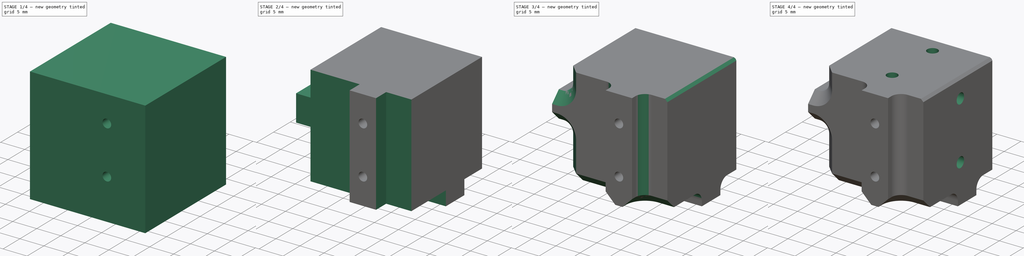
[diagram: build sequence overview — one tinted view per stage of 4, left to right]
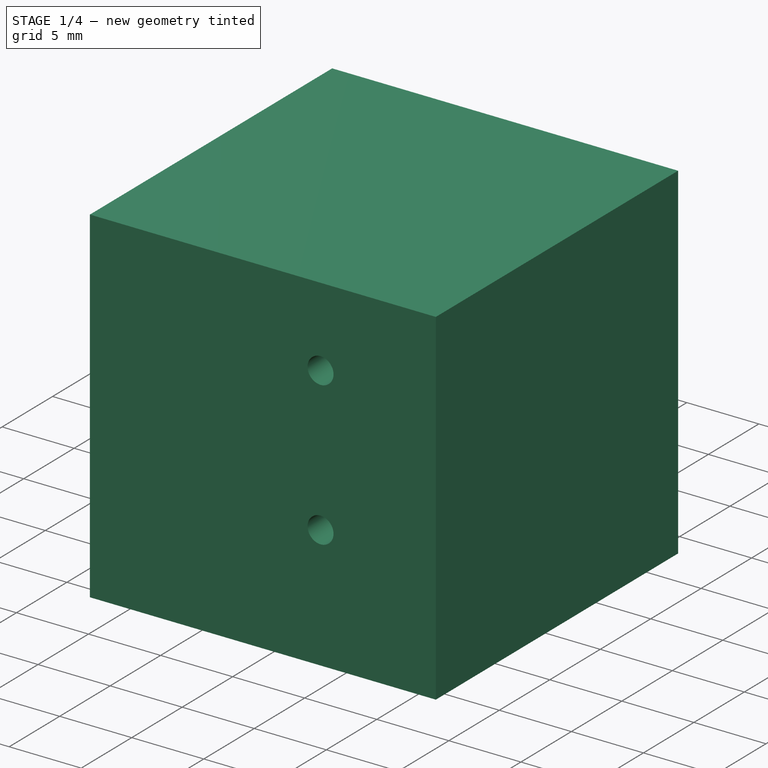
[diagram: stage 1 of 4 — iso view after this stage's code; geometry added in this stage tinted green]
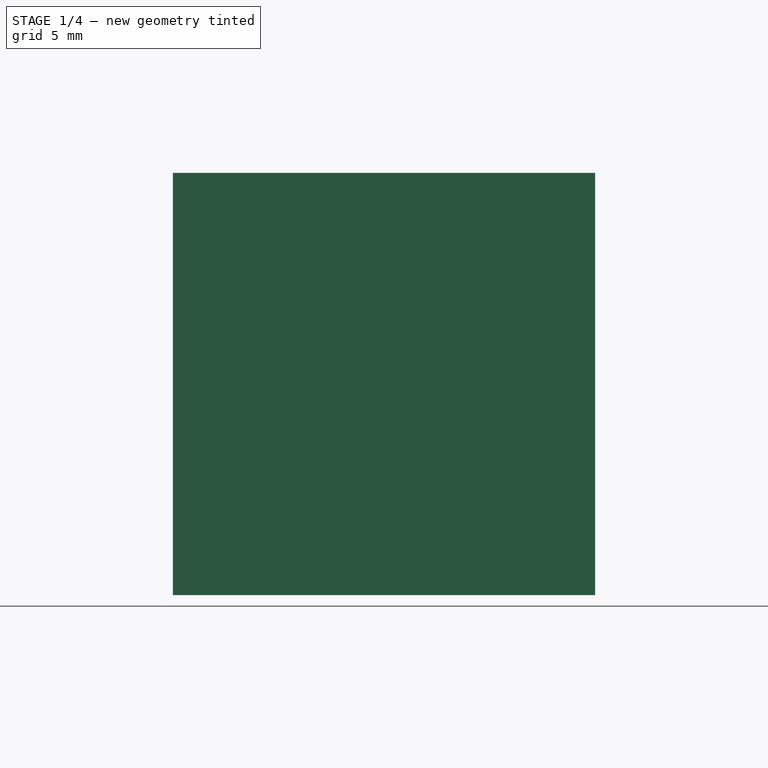
[diagram: stage 1 of 4 — front view after this stage's code; geometry added in this stage tinted green]
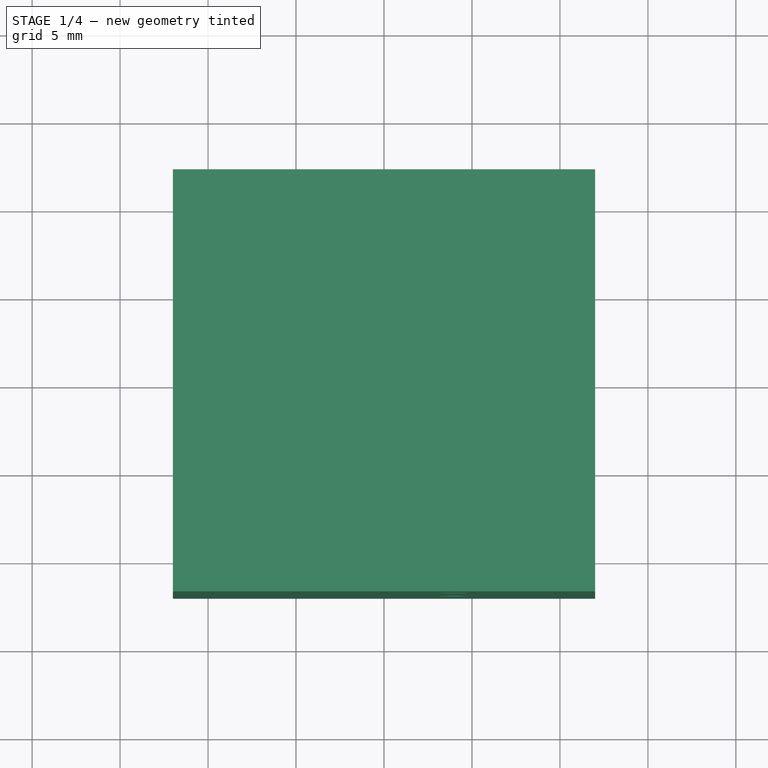
[diagram: stage 1 of 4 — top view after this stage's code; geometry added in this stage tinted green]
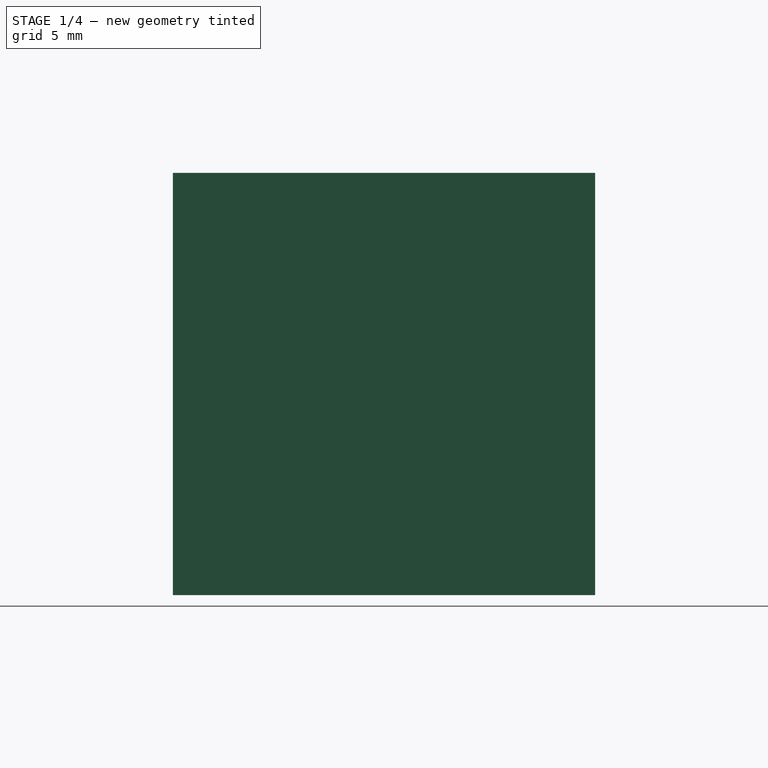
[diagram: stage 1 of 4 — right view after this stage's code; geometry added in this stage tinted green]
FCSTD DOCUMENT  (FreeCAD 1.1R41365 (Git))
Label: EndEffector
License: All rights reserved
LicenseURL: https://en.wikipedia.org/wiki/All_rights_reserved
objects: Sketcher::SketchObject×4, PartDesign::Pocket×3, PartDesign::PolarPattern×2, PartDesign::Chamfer×2, App::Point×1, PartDesign::Pad×1, Part::DatumLine×1, PartDesign::Fillet×1, PartDesign::Body×1
note: 34 computed .brp shape members not serialized (recipe doc carries the construction recipe); baked Part::Feature solids carry a one-line shape summary decoded from their .brp

FEATURE [App::Point] Origin001
  Role = Origin
FEATURE [Sketcher::SketchObject] Sketch
  ArcFitTolerance = 1e-06
  AttachmentSupport = -> [XY_Plane]
  ExternalTypes = [0]
  FullyConstrained = true
  MakeInternals = false
  MapMode = 5
  sketch-geometry (5):
    g0: LineSegment StartX=-12 StartY=12 StartZ=0 EndX=-12 EndY=-12 EndZ=0
    g1: LineSegment StartX=-12 StartY=-12 StartZ=0 EndX=12 EndY=-12 EndZ=0
    g2: LineSegment StartX=12 StartY=-12 StartZ=0 EndX=12 EndY=12 EndZ=0
    g3: LineSegment StartX=12 StartY=12 StartZ=0 EndX=-12 EndY=12 EndZ=0
    g4: GeomPoint [constr] X=0 Y=0 Z=0
  constraints (12):
    c: Coincident(g0,g1)
    c: Coincident(g1,g2)
    c: Coincident(g2,g3)
    c: Coincident(g3,g0)
    c: Vertical(g0)
    c: Vertical(g2)
    c: Horizontal(g1)
    c: Horizontal(g3)
    c: Symmetric(g2,g0,g4)
    c: Coincident(g4,g-1)
    c: DistanceY(g2,g2) = 24
    c: DistanceX(g1,g1) = 24
FEATURE [PartDesign::Pad] Pad
  Direction = (0,0,1)
  Length = 24
  Length2 = 10
  Midplane = true
  Profile = -> Sketch
  ReferenceAxis = -> Sketch [N_Axis]
  Refine = true
  Suppressed = false
  Type = 0
FEATURE [Sketcher::SketchObject] Sketch001
  ArcFitTolerance = 1e-06
  AttachmentSupport = -> [Pad]
  ExternalGeometry = -> [Pad]
  ExternalTypes = [0]
  FullyConstrained = true
  MakeInternals = false
  MapMode = 5
  Placement = pos=(0,-12,0) rot=(1,0,0;1.5708rad)
  sketch-geometry (4):
    g0: Circle CenterX=4 CenterY=6.5 CenterZ=0 NormalX=0 NormalY=0 NormalZ=1 AngleXU=0 Radius=0.9
    g1: Circle CenterX=4 CenterY=-3.5 CenterZ=0 NormalX=0 NormalY=0 NormalZ=1 AngleXU=0 Radius=0.9
    g2: LineSegment [constr] StartX=4 StartY=6.5 StartZ=0 EndX=4 EndY=-3.5 EndZ=0
    g3: GeomPoint X=4 Y=1.5 Z=0
  constraints (9):
    c: Equal(g0,g1)
    c: Vertical(g1,g0)
    c: DistanceY(g1,g0) = 10
    c: Coincident(g2,g0)
    c: Coincident(g2,g1)
    c: Diameter(g0) = 1.8
    c: Symmetric(g2,g2,g3)
    c: DistanceY(g-1,g3) = 1.5
    c: Distance(g-2,g2) = 4
FEATURE [PartDesign::Pocket] Pocket
  BaseFeature = -> Pad
  Direction = (0,1,-2e-16)
  Length = 10
  Length2 = 5
  Midplane = true
  Profile = -> Sketch001
  ReferenceAxis = -> Sketch001 [N_Axis]
  Refine = true
  Suppressed = false
  Type = 0
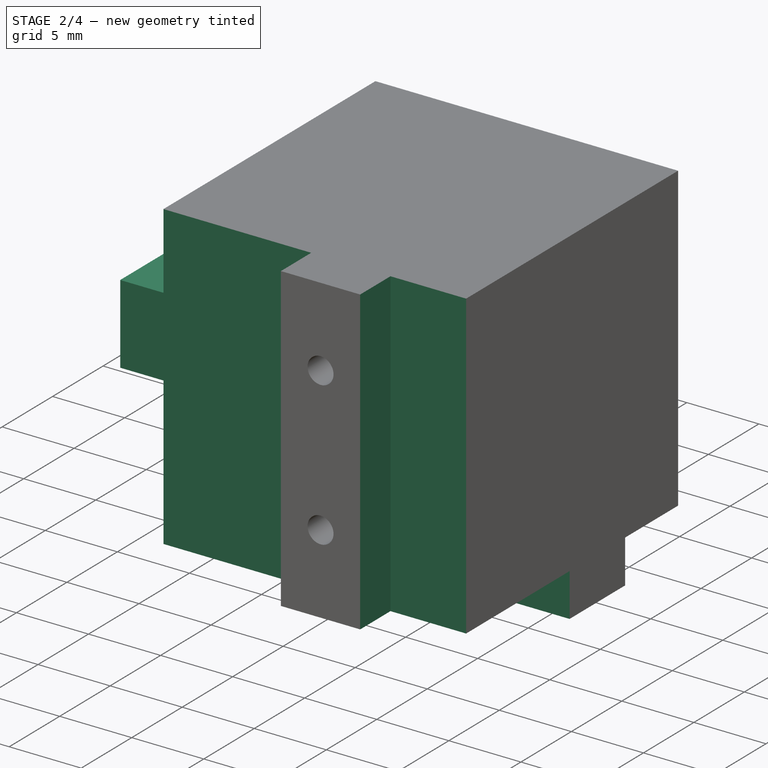
[diagram: stage 2 of 4 — iso view after this stage's code; geometry added in this stage tinted green]
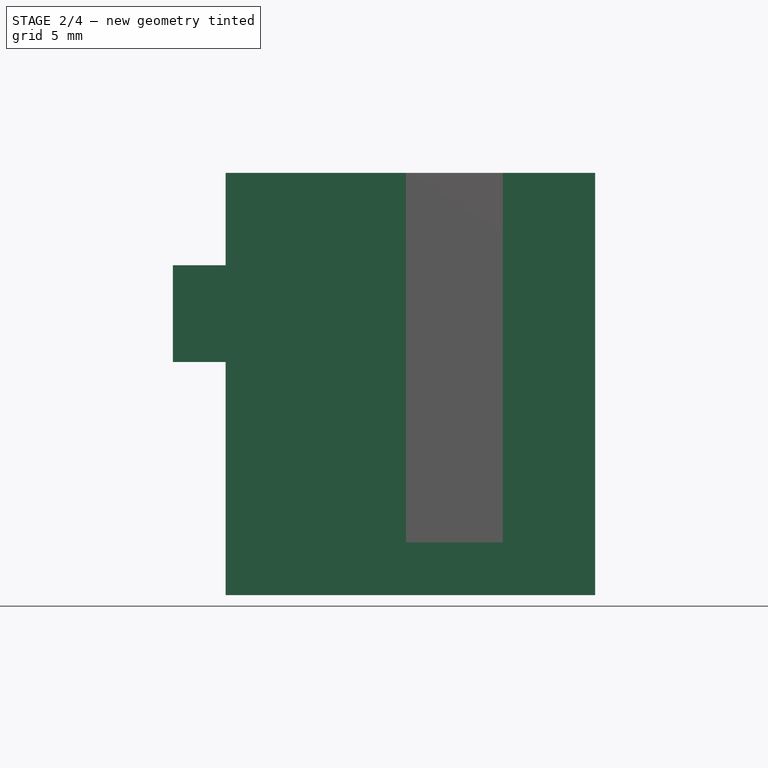
[diagram: stage 2 of 4 — front view after this stage's code; geometry added in this stage tinted green]
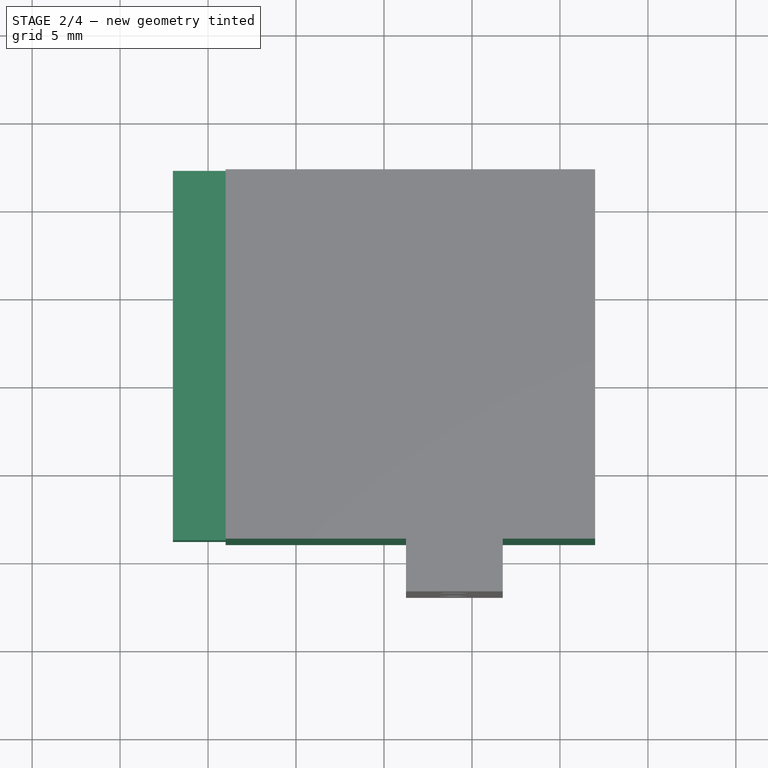
[diagram: stage 2 of 4 — top view after this stage's code; geometry added in this stage tinted green]
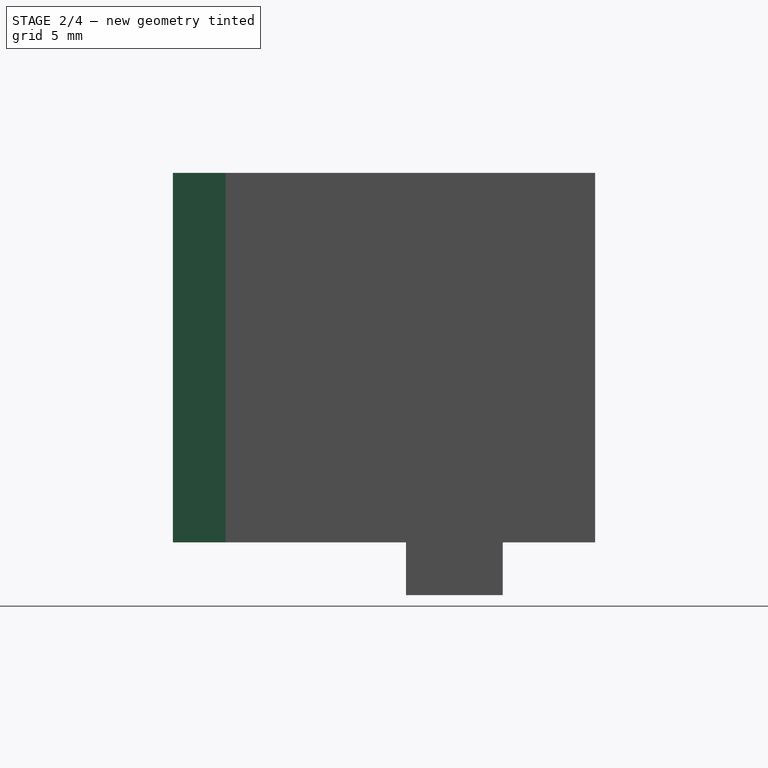
[diagram: stage 2 of 4 — right view after this stage's code; geometry added in this stage tinted green]
FEATURE [Part::DatumLine] DatumLine
  AttacherType = Attacher::AttachEngineLine
  AttachmentSupport = -> [Pocket]
  MapMode = 29
  Placement = pos=(0,0,0) rot=(0.187053,0.451587,0.872399;2.44807rad)
FEATURE [Sketcher::SketchObject] Sketch002
  ArcFitTolerance = 1e-06
  AttachmentSupport = -> [Pocket]
  ExternalGeometry = -> [Pocket]
  ExternalTypes = [0,0]
  FullyConstrained = true
  MakeInternals = false
  MapMode = 5
  Placement = pos=(0,-12,0) rot=(1,0,0;1.5708rad)
  sketch-geometry (11):
    g0: LineSegment StartX=-18.75 StartY=12.5 StartZ=0 EndX=-18.75 EndY=-12.5 EndZ=0
    g1: LineSegment StartX=-18.75 StartY=-12.5 StartZ=0 EndX=1.25 EndY=-12.5 EndZ=0
    g2: LineSegment StartX=1.25 StartY=-12.5 StartZ=0 EndX=1.25 EndY=12.5 EndZ=0
    g3: LineSegment StartX=1.25 StartY=12.5 StartZ=0 EndX=-18.75 EndY=12.5 EndZ=0
    g4: GeomPoint [constr] X=-8.75 Y=0 Z=0
    g5: LineSegment StartX=6.75 StartY=12.5 StartZ=0 EndX=6.75 EndY=-12.5 EndZ=0
    g6: LineSegment StartX=6.75 StartY=-12.5 StartZ=0 EndX=26.75 EndY=-12.5 EndZ=0
    g7: LineSegment StartX=26.75 StartY=-12.5 StartZ=0 EndX=26.75 EndY=12.5 EndZ=0
    g8: LineSegment StartX=26.75 StartY=12.5 StartZ=0 EndX=6.75 EndY=12.5 EndZ=0
    g9: LineSegment [constr] StartX=1.25 StartY=12.5 StartZ=0 EndX=6.75 EndY=12.5 EndZ=0
    g10: LineSegment [constr] StartX=4 StartY=6.5 StartZ=0 EndX=4 EndY=12.5 EndZ=0
  constraints (27):
    c: Coincident(g0,g1)
    c: Coincident(g1,g2)
    c: Coincident(g2,g3)
    c: Coincident(g3,g0)
    c: Vertical(g0)
    c: Vertical(g2)
    c: Horizontal(g1)
    c: Horizontal(g3)
    c: Symmetric(g2,g0,g4)
    c: PointOnObject(g4,g-1)
    c: DistanceX(g3,g3) = 20
    c: DistanceY(g0,g0) = 25
    c: Coincident(g5,g6)
    c: Coincident(g6,g7)
    c: Coincident(g7,g8)
    c: Coincident(g8,g5)
    c: Vertical(g5)
    c: Vertical(g7)
    c: Tangent(g1,g6)
    c: Tangent(g8,g3)
    c: Distance(g5,g2) = 5.5
    c: Equal(g8,g3)
    c: Coincident(g9,g2)
    c: Coincident(g9,g5)
    c: Symmetric(g9,g9,g10)
    c: Perpendicular(g9,g10)
    c: Coincident(g-3,g10)
FEATURE [PartDesign::Pocket] Pocket001
  BaseFeature = -> Pocket
  Direction = (0,1,-2e-16)
  Length = 3
  Length2 = 5
  Profile = -> Sketch002
  ReferenceAxis = -> Sketch002 [N_Axis]
  Refine = true
  Suppressed = false
  Type = 0
FEATURE [PartDesign::PolarPattern] PolarPattern
  Angle = 360
  Axis = -> DatumLine
  BaseFeature = -> Pocket001
  Mode = 0
  Occurrences = 3
  Offset = 120
  Originals = -> [Pocket,Pocket001]
  Refine = true
  Suppressed = false
  TransformMode = 0
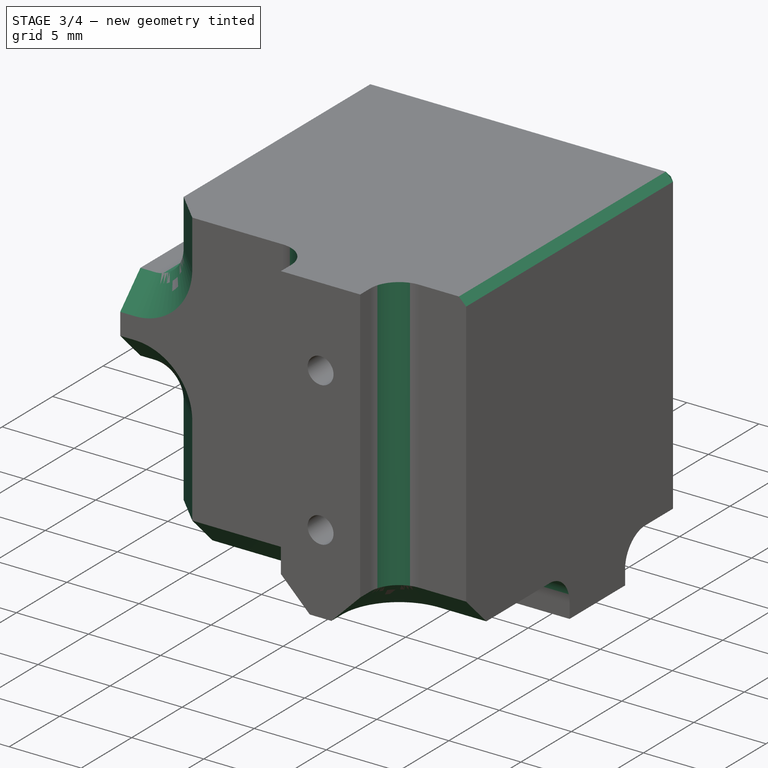
[diagram: stage 3 of 4 — iso view after this stage's code; geometry added in this stage tinted green]
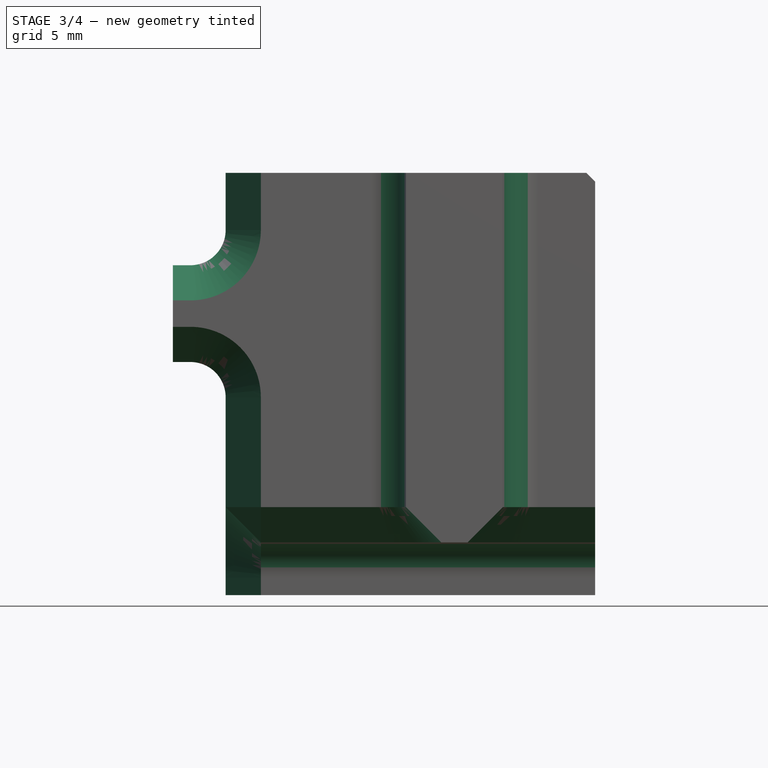
[diagram: stage 3 of 4 — front view after this stage's code; geometry added in this stage tinted green]
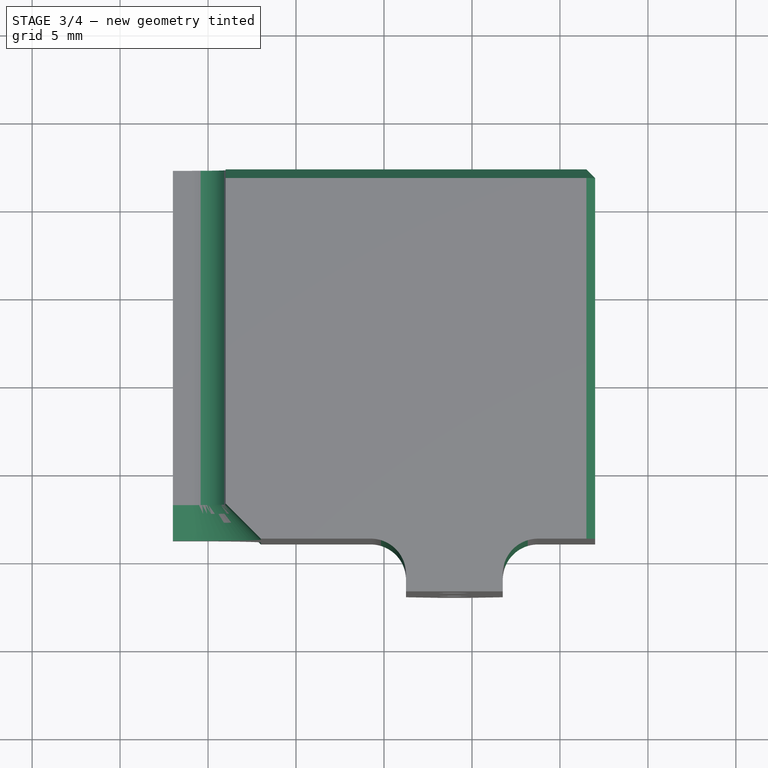
[diagram: stage 3 of 4 — top view after this stage's code; geometry added in this stage tinted green]
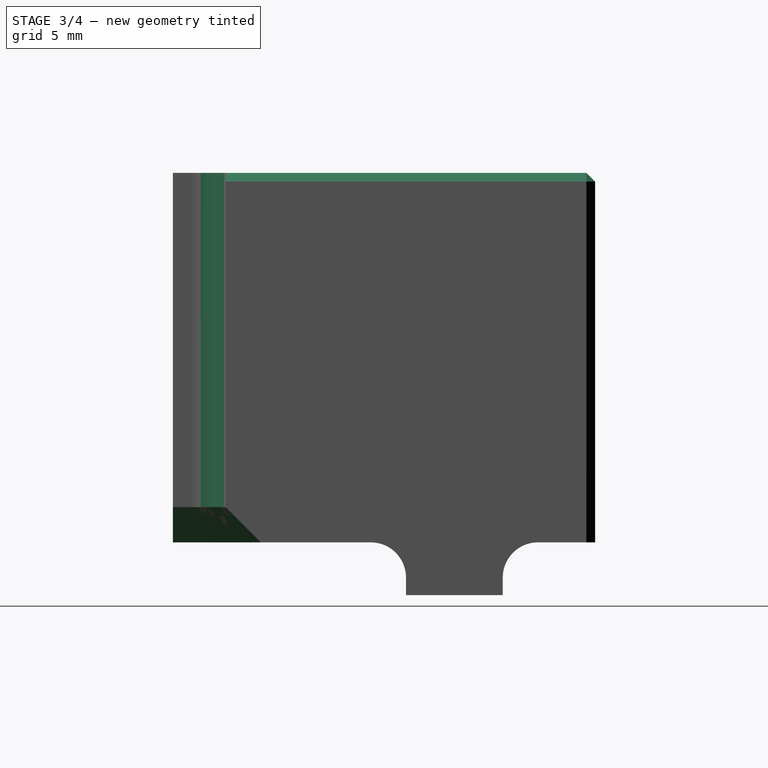
[diagram: stage 3 of 4 — right view after this stage's code; geometry added in this stage tinted green]
FEATURE [PartDesign::Fillet] Fillet
  Base = -> PolarPattern [Edge15,Edge43,Edge8,Edge16,Edge55,Edge45]
  BaseFeature = -> PolarPattern
  Radius = 2
  Refine = true
  SupportTransform = false
  Suppressed = false
  UseAllEdges = false
FEATURE [PartDesign::Chamfer] Chamfer
  Angle = 45
  Base = -> Fillet [Edge25,Edge32,Edge23,Edge27,Edge22,Edge60]
  BaseFeature = -> Fillet
  ChamferType = 0
  FlipDirection = false
  Refine = true
  Size = 2
  Size2 = 1
  SupportTransform = false
  Suppressed = false
  UseAllEdges = false
FEATURE [PartDesign::Chamfer] Chamfer001
  Angle = 45
  Base = -> Chamfer [Edge16,Edge51,Edge14]
  BaseFeature = -> Chamfer
  ChamferType = 0
  FlipDirection = false
  Refine = true
  Size = 0.5
  Size2 = 1
  SupportTransform = false
  Suppressed = false
  UseAllEdges = false
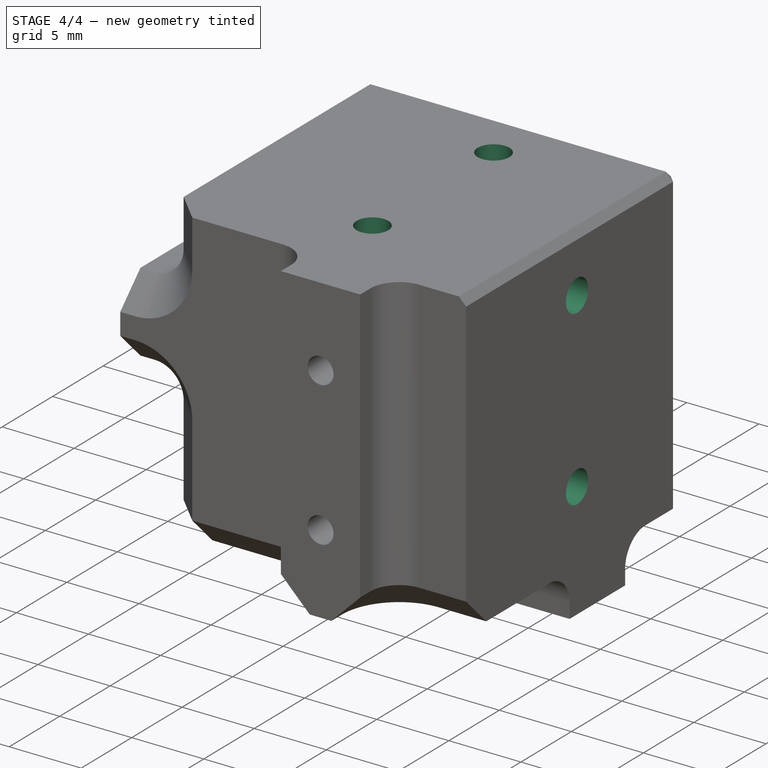
[diagram: stage 4 of 4 — iso view after this stage's code; geometry added in this stage tinted green]
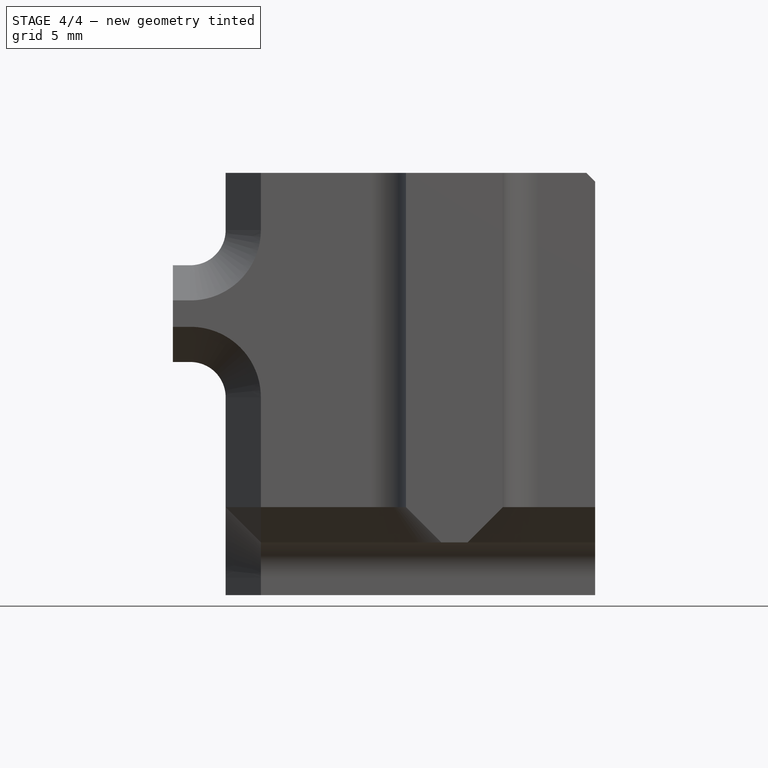
[diagram: stage 4 of 4 — front view after this stage's code; geometry added in this stage tinted green]
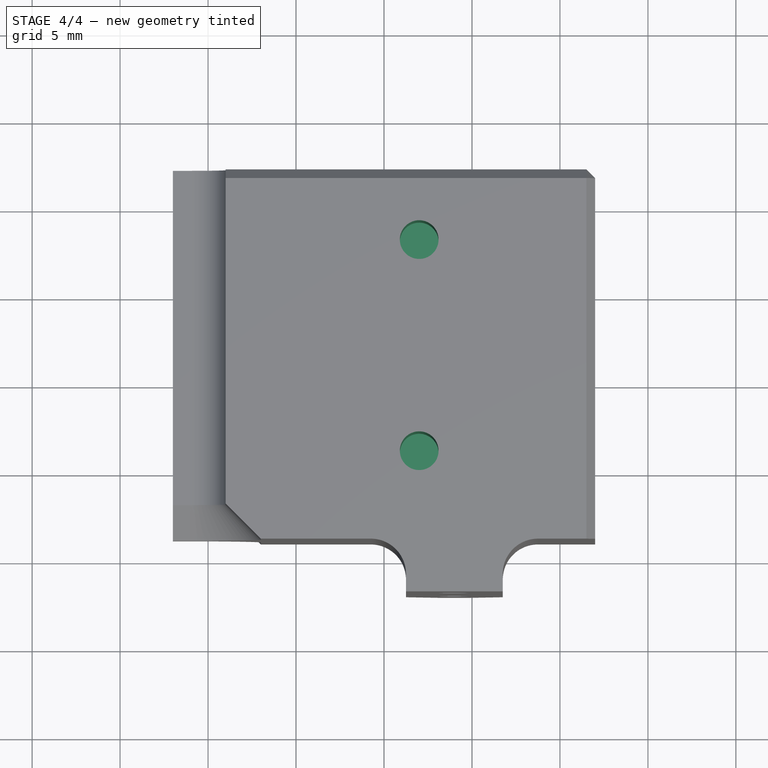
[diagram: stage 4 of 4 — top view after this stage's code; geometry added in this stage tinted green]
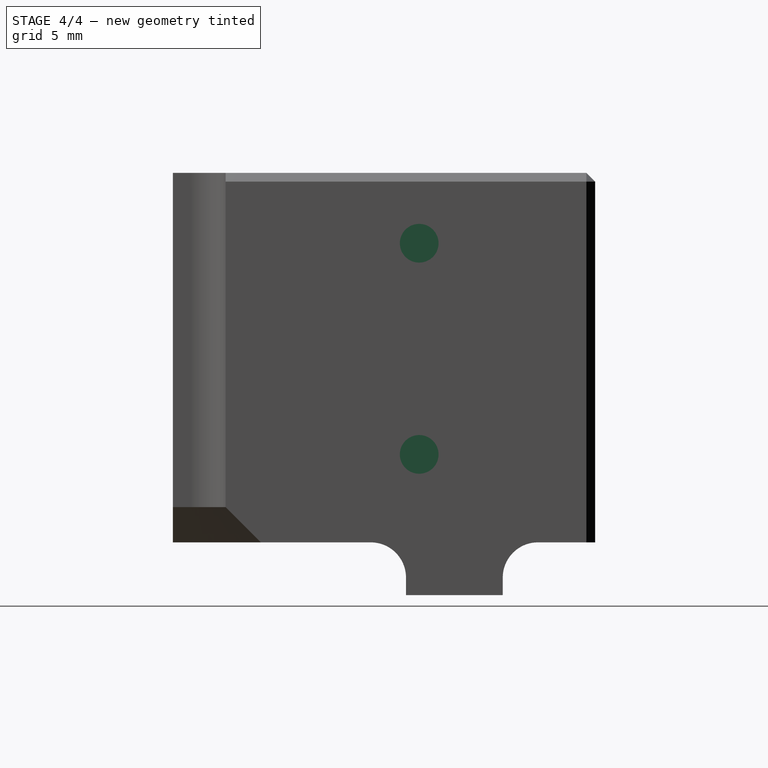
[diagram: stage 4 of 4 — right view after this stage's code; geometry added in this stage tinted green]
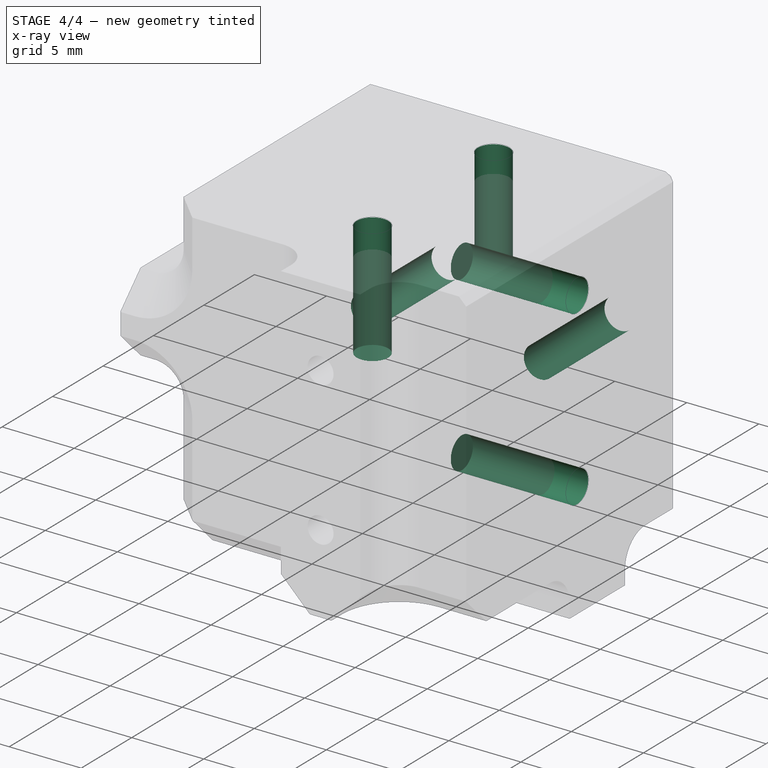
[diagram: stage 4 of 4 — x-ray composite at the iso view; earlier geometry ghosted, this stage's added geometry solid]
FEATURE [Sketcher::SketchObject] Sketch003
  ArcFitTolerance = 1e-06
  AttachmentSupport = -> [Chamfer001]
  ExternalTypes = [0]
  FullyConstrained = false
  MakeInternals = false
  MapMode = 5
  Placement = pos=(0,0,12) rot=(0,0,1;0rad)
  sketch-geometry (3):
    g0: Circle CenterX=2 CenterY=8 CenterZ=0 NormalX=0 NormalY=0 NormalZ=1 AngleXU=0 Radius=1.1
    g1: Circle CenterX=2 CenterY=-4 CenterZ=0 NormalX=0 NormalY=0 NormalZ=1 AngleXU=0 Radius=1.1
    g2: LineSegment [constr] StartX=2 StartY=8 StartZ=0 EndX=2 EndY=-4 EndZ=0
  constraints (7):
    c: Diameter(g0) = 2.2
    c: Vertical(g2)
    c: Coincident(g2,g0)
    c: Coincident(g1,g2)
    c: DistanceY(g-1,g0) = 8
    c: DistanceY(g2,g2) = 12
    c: Distance(g-2,g2) = 2
FEATURE [PartDesign::Pocket] Pocket002
  BaseFeature = -> Chamfer001
  Direction = (0,0,-1)
  Length = 8
  Length2 = 5
  Profile = -> Sketch003
  ReferenceAxis = -> Sketch003 [N_Axis]
  Refine = true
  Suppressed = false
  Type = 0
FEATURE [PartDesign::PolarPattern] PolarPattern001
  Angle = 360
  Axis = -> DatumLine
  BaseFeature = -> Pocket002
  Mode = 0
  Occurrences = 3
  Offset = 120
  Originals = -> [Pocket002]
  Refine = true
  Suppressed = false
  TransformMode = 0
FEATURE [PartDesign::Body] Body  label="Endeffector"
  AllowCompound = false
  Group = -> [Sketch,Pad,Sketch001,Pocket,DatumLine,Sketch002,Pocket001,PolarPattern,Fillet,Chamfer,Chamfer001,Sketch003,Pocket002,PolarPattern001]
  Origin = -> Origin
  Tip = -> PolarPattern001
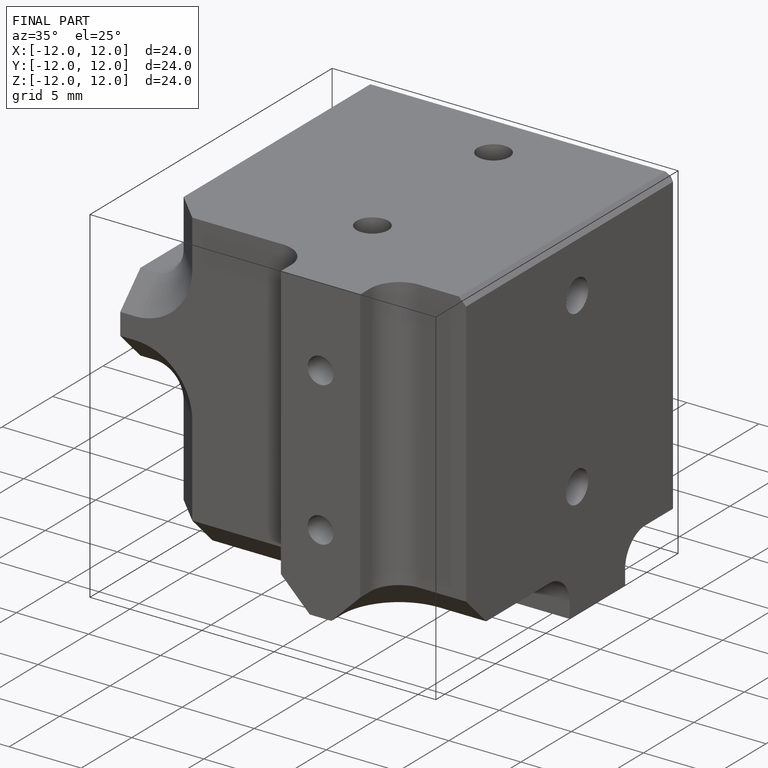
[diagram: finished part — iso view with bounding-box wireframe]
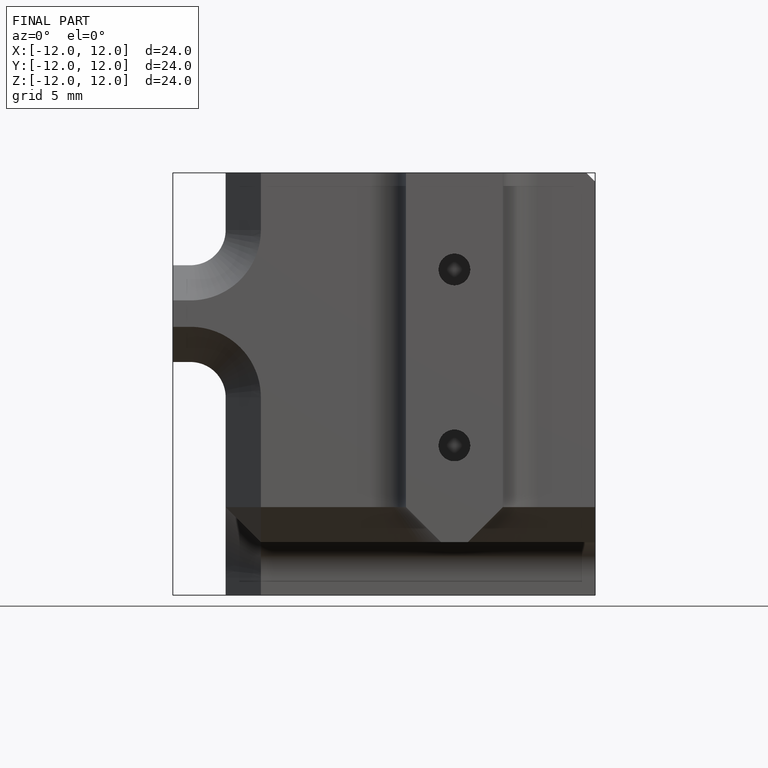
[diagram: finished part — front view with bounding-box wireframe]
